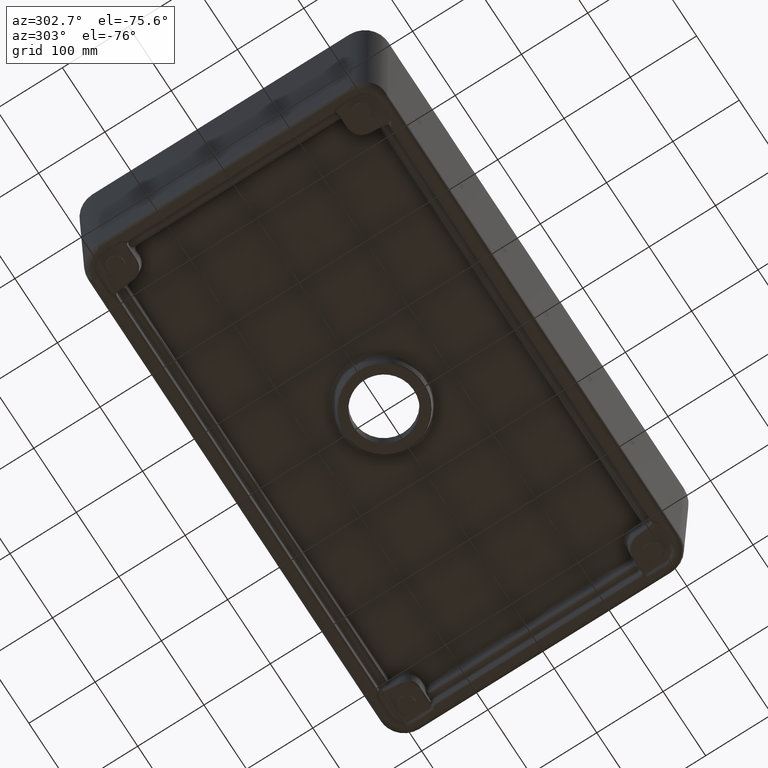
[diagram: clean part render]
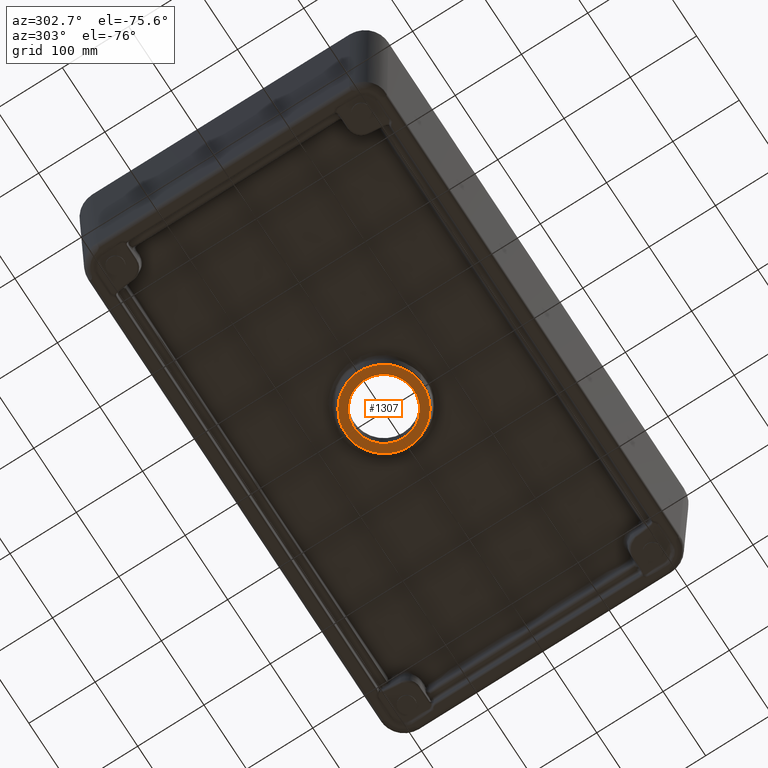
[diagram: same view with one face highlighted and labeled with its STEP entity id]
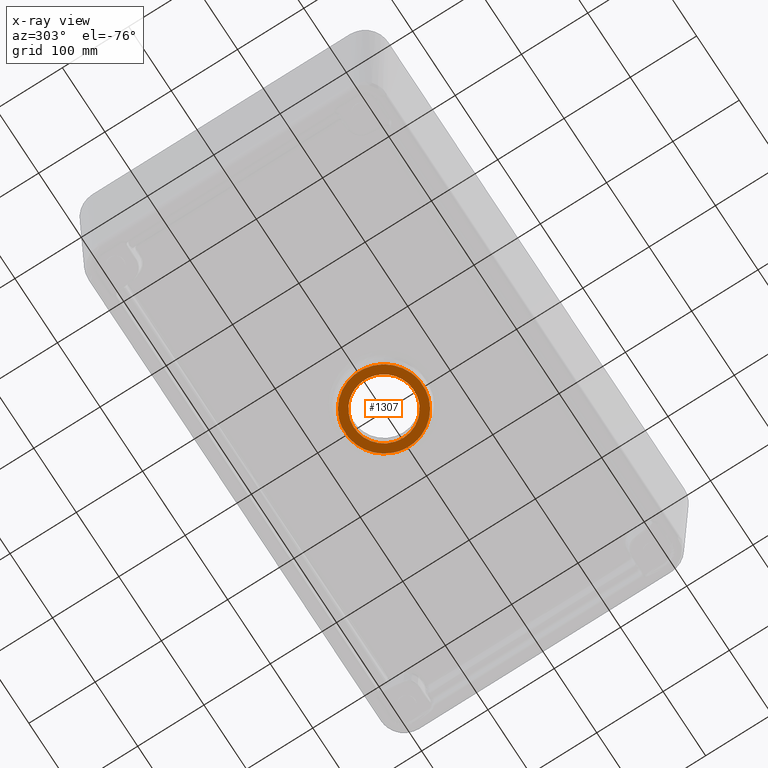
[diagram: x-ray of the same camera — body ghosted, the highlighted face saturated]
A machine part, auxiliary view. The second image highlights one B-rep face of the part: STEP entity #1307.
The next image is the same camera in x-ray: the body ghosted, the highlighted face saturated — about 0% of this face is hidden behind the body in this view.
In plain terms, the highlighted planar face has unit normal (0, 0, 1).
Its self-contained STEP definition (entity closure, byte-faithful):
#391=(
BOUNDED_CURVE()
B_SPLINE_CURVE(3,(#7377,#7378,#7379,#7380),.UNSPECIFIED.,.F.,.F.)
B_SPLINE_CURVE_WITH_KNOTS((4,4),(0.,1.),.UNSPECIFIED.)
CURVE()
GEOMETRIC_REPRESENTATION_ITEM()
RATIONAL_B_SPLINE_CURVE((1.,0.333333333333333,0.333333333333333,1.))
REPRESENTATION_ITEM('')
);
#392=(
BOUNDED_CURVE()
B_SPLINE_CURVE(3,(#7383,#7384,#7385,#7386),.UNSPECIFIED.,.F.,.F.)
B_SPLINE_CURVE_WITH_KNOTS((4,4),(0.,1.),.UNSPECIFIED.)
CURVE()
GEOMETRIC_REPRESENTATION_ITEM()
RATIONAL_B_SPLINE_CURVE((1.,0.333333333333333,0.333333333333333,1.))
REPRESENTATION_ITEM('')
);
#448=B_SPLINE_CURVE_WITH_KNOTS('',3,(#7299,#7300,#7301,#7302),
 .UNSPECIFIED.,.F.,.F.,(4,4),(0.,1.),.UNSPECIFIED.);
#449=B_SPLINE_CURVE_WITH_KNOTS('',3,(#7305,#7306,#7307,#7308),
 .UNSPECIFIED.,.F.,.F.,(4,4),(0.,1.),.UNSPECIFIED.);
#450=B_SPLINE_CURVE_WITH_KNOTS('',3,(#7310,#7311,#7312,#7313,#7314,#7315,
#7316,#7317,#7318,#7319),.UNSPECIFIED.,.F.,.F.,(4,2,2,2,4),(0.,0.25,0.5,
0.75,1.),.UNSPECIFIED.);
#451=B_SPLINE_CURVE_WITH_KNOTS('',3,(#7321,#7322,#7323,#7324,#7325,#7326),
 .UNSPECIFIED.,.F.,.F.,(4,2,4),(0.,0.5,1.),.UNSPECIFIED.);
#452=B_SPLINE_CURVE_WITH_KNOTS('',3,(#7328,#7329,#7330,#7331,#7332,#7333,
#7334,#7335,#7336,#7337),.UNSPECIFIED.,.F.,.F.,(4,2,2,2,4),(0.,0.25,0.5,
0.75,1.),.UNSPECIFIED.);
#453=B_SPLINE_CURVE_WITH_KNOTS('',3,(#7339,#7340,#7341,#7342),
 .UNSPECIFIED.,.F.,.F.,(4,4),(0.,1.),.UNSPECIFIED.);
#454=B_SPLINE_CURVE_WITH_KNOTS('',3,(#7344,#7345,#7346,#7347),
 .UNSPECIFIED.,.F.,.F.,(4,4),(0.,1.),.UNSPECIFIED.);
#455=B_SPLINE_CURVE_WITH_KNOTS('',3,(#7349,#7350,#7351,#7352,#7353,#7354,
#7355,#7356,#7357,#7358),.UNSPECIFIED.,.F.,.F.,(4,2,2,2,4),(0.,0.25,0.5,
0.75,1.),.UNSPECIFIED.);
#456=B_SPLINE_CURVE_WITH_KNOTS('',3,(#7360,#7361,#7362,#7363,#7364,#7365),
 .UNSPECIFIED.,.F.,.F.,(4,2,4),(0.,0.5,1.),.UNSPECIFIED.);
#457=B_SPLINE_CURVE_WITH_KNOTS('',3,(#7367,#7368,#7369,#7370,#7371,#7372,
#7373,#7374,#7375,#7376),.UNSPECIFIED.,.F.,.F.,(4,2,2,2,4),(0.,0.25,0.5,
0.75,1.),.UNSPECIFIED.);
#982=FACE_BOUND('',#2022,.T.);
#983=FACE_BOUND('',#2023,.T.);
#1307=ADVANCED_FACE('',(#982,#983),#1656,.F.);
#1656=PLANE('',#5818);
#2022=EDGE_LOOP('',(#2466,#2467,#2468,#2469,#2470,#2471,#2472,#2473,#2474,
#2475));
#2023=EDGE_LOOP('',(#2476,#2477));
#2466=ORIENTED_EDGE('',*,*,#4848,.T.);
#2467=ORIENTED_EDGE('',*,*,#4849,.F.);
#2468=ORIENTED_EDGE('',*,*,#4850,.F.);
#2469=ORIENTED_EDGE('',*,*,#4851,.F.);
#2470=ORIENTED_EDGE('',*,*,#4852,.F.);
#2471=ORIENTED_EDGE('',*,*,#4853,.F.);
#2472=ORIENTED_EDGE('',*,*,#4854,.T.);
#2473=ORIENTED_EDGE('',*,*,#4855,.T.);
#2474=ORIENTED_EDGE('',*,*,#4856,.T.);
#2475=ORIENTED_EDGE('',*,*,#4857,.T.);
#2476=ORIENTED_EDGE('',*,*,#4858,.T.);
#2477=ORIENTED_EDGE('',*,*,#4859,.F.);
#4274=VERTEX_POINT('',#7303);
#4275=VERTEX_POINT('',#7304);
#4276=VERTEX_POINT('',#7309);
#4277=VERTEX_POINT('',#7320);
#4278=VERTEX_POINT('',#7327);
#4279=VERTEX_POINT('',#7338);
#4280=VERTEX_POINT('',#7343);
#4281=VERTEX_POINT('',#7348);
#4282=VERTEX_POINT('',#7359);
#4283=VERTEX_POINT('',#7366);
#4284=VERTEX_POINT('',#7381);
#4285=VERTEX_POINT('',#7382);
#4848=EDGE_CURVE('',#4274,#4275,#448,.T.);
#4849=EDGE_CURVE('',#4276,#4275,#449,.T.);
#4850=EDGE_CURVE('',#4277,#4276,#450,.T.);
#4851=EDGE_CURVE('',#4278,#4277,#451,.T.);
#4852=EDGE_CURVE('',#4279,#4278,#452,.T.);
#4853=EDGE_CURVE('',#4280,#4279,#453,.T.);
#4854=EDGE_CURVE('',#4280,#4281,#454,.T.);
#4855=EDGE_CURVE('',#4281,#4282,#455,.T.);
#4856=EDGE_CURVE('',#4282,#4283,#456,.T.);
#4857=EDGE_CURVE('',#4283,#4274,#457,.T.);
#4858=EDGE_CURVE('',#4284,#4285,#391,.T.);
#4859=EDGE_CURVE('',#4284,#4285,#392,.T.);
#5818=AXIS2_PLACEMENT_3D('',#7387,#6184,#6185);
#6184=DIRECTION('',(0.,0.,1.));
#6185=DIRECTION('',(-1.,0.,0.));
#7299=CARTESIAN_POINT('',(58.0555016683038,7.53316350919823,-38.9249710355113));
#7300=CARTESIAN_POINT('',(58.3712134913079,5.0337907979926,-38.9249710355113));
#7301=CARTESIAN_POINT('',(58.4335547377872,2.51578286777107,-38.9249710355113));
#7302=CARTESIAN_POINT('',(58.4311428970972,-1.07458834853417E-014,-38.9249710355113));
#7303=CARTESIAN_POINT('',(58.0554548155051,7.53315742336308,-38.9249710355113));
#7304=CARTESIAN_POINT('',(58.4311428970972,0.,-38.9249710355113));
#7305=CARTESIAN_POINT('',(58.0555016683038,-7.53316350919823,-38.9249710355113));
#7306=CARTESIAN_POINT('',(58.3712134913079,-5.0337907979926,-38.9249710355113));
#7307=CARTESIAN_POINT('',(58.4335547377872,-2.51578286777107,-38.9249710355113));
#7308=CARTESIAN_POINT('',(58.4311428970972,1.07458834853417E-014,-38.9249710355113));
#7309=CARTESIAN_POINT('',(58.0554548155051,-7.53315742336308,-38.9249710355113));
#7310=CARTESIAN_POINT('',(7.52562559677142,-58.055346782479,-38.9249710355113));
#7311=CARTESIAN_POINT('',(13.935933990214,-57.2267428652698,-38.9249710355113));
#7312=CARTESIAN_POINT('',(20.1001875355138,-55.3589383602752,-38.9249710355112));
#7313=CARTESIAN_POINT('',(31.6453917002081,-49.6699228812264,-38.9249710355112));
#7314=CARTESIAN_POINT('',(36.8566829546227,-45.9377705901505,-38.9249710355113));
#7315=CARTESIAN_POINT('',(45.9673597959524,-36.8208546607922,-38.9249710355113));
#7316=CARTESIAN_POINT('',(49.6840415372207,-31.6212784547635,-38.9249710355113));
#7317=CARTESIAN_POINT('',(55.3835311710365,-20.0416475261022,-38.9249710355113));
#7318=CARTESIAN_POINT('',(57.2230085476233,-13.9418813675452,-38.9249710355113));
#7319=CARTESIAN_POINT('',(58.0554548155051,-7.53315742336306,-38.9249710355113));
#7320=CARTESIAN_POINT('',(7.52564228310221,-58.0554796106516,-38.9249710355113));
#7321=CARTESIAN_POINT('',(-7.5330832065061,-58.0563919605231,-38.9249710355113));
#7322=CARTESIAN_POINT('',(-5.03347172671337,-58.3722139154325,-38.9249710355113));
#7323=CARTESIAN_POINT('',(-2.52105478412802,-58.433230870146,-38.9249710355113));
#7324=CARTESIAN_POINT('',(2.50985045112757,-58.4270944244495,-38.9249710355113));
#7325=CARTESIAN_POINT('',(5.02835669157803,-58.3691971949172,-38.9249710355113));
#7326=CARTESIAN_POINT('',(7.52564228310221,-58.0554796106516,-38.9249710355113));
#7327=CARTESIAN_POINT('',(-7.53306208875095,-58.0562293594534,-38.9249710355113));
#7328=CARTESIAN_POINT('',(-58.0561629517591,-7.53293694379342,-38.9249710355113));
#7329=CARTESIAN_POINT('',(-57.2235641030273,-13.9419141664523,-38.9249710355113));
#7330=CARTESIAN_POINT('',(-55.3556396715589,-20.1077381270137,-38.9249710355113));
#7331=CARTESIAN_POINT('',(-49.6690022342434,-31.6504350221792,-38.9249710355113));
#7332=CARTESIAN_POINT('',(-45.9338736660194,-36.8613786335349,-38.9249710355112));
#7333=CARTESIAN_POINT('',(-36.8191278943405,-45.9682710898658,-38.9249710355112));
#7334=CARTESIAN_POINT('',(-31.6220778685655,-49.6896645050576,-38.9249710355113));
#7335=CARTESIAN_POINT('',(-20.0409143516773,-55.381639852361,-38.9249710355113));
#7336=CARTESIAN_POINT('',(-13.9420600429093,-57.2238630665328,-38.9249710355113));
#7337=CARTESIAN_POINT('',(-7.53306208875094,-58.0562293594534,-38.9249710355113));
#7338=CARTESIAN_POINT('',(-58.0562846708838,-7.53295275648858,-38.9249710355113));
#7339=CARTESIAN_POINT('',(-58.431187181759,6.27907641381981E-014,-38.9249710355112));
#7340=CARTESIAN_POINT('',(-58.4287993801285,-2.51540443537523,-38.9249710355112));
#7341=CARTESIAN_POINT('',(-58.3722514203983,-5.03424274975686,-38.9249710355113));
#7342=CARTESIAN_POINT('',(-58.0564063900084,-7.53296856918373,-38.9249710355113));
#7343=CARTESIAN_POINT('',(-58.4311871817591,0.,-38.9249710355113));
#7344=CARTESIAN_POINT('',(-58.431187181759,-6.27907641381981E-014,-38.9249710355112));
#7345=CARTESIAN_POINT('',(-58.4287993801285,2.51540443537523,-38.9249710355112));
#7346=CARTESIAN_POINT('',(-58.3722514203983,5.03424274975686,-38.9249710355113));
#7347=CARTESIAN_POINT('',(-58.0564063900084,7.53296856918373,-38.9249710355113));
#7348=CARTESIAN_POINT('',(-58.0562846708838,7.53295275648858,-38.9249710355113));
#7349=CARTESIAN_POINT('',(-58.0561629517591,7.53293694379342,-38.9249710355113));
#7350=CARTESIAN_POINT('',(-57.2235641030273,13.9419141664523,-38.9249710355113));
#7351=CARTESIAN_POINT('',(-55.3556396715589,20.1077381270137,-38.9249710355113));
#7352=CARTESIAN_POINT('',(-49.6690022342434,31.6504350221792,-38.9249710355113));
#7353=CARTESIAN_POINT('',(-45.9338736660194,36.8613786335349,-38.9249710355112));
#7354=CARTESIAN_POINT('',(-36.8191278943405,45.9682710898658,-38.9249710355112));
#7355=CARTESIAN_POINT('',(-31.6220778685655,49.6896645050576,-38.9249710355113));
#7356=CARTESIAN_POINT('',(-20.0409143516773,55.381639852361,-38.9249710355113));
#7357=CARTESIAN_POINT('',(-13.9420600429093,57.2238630665328,-38.9249710355113));
#7358=CARTESIAN_POINT('',(-7.53306208875094,58.0562293594534,-38.9249710355113));
#7359=CARTESIAN_POINT('',(-7.53306208875095,58.0562293594534,-38.9249710355113));
#7360=CARTESIAN_POINT('',(-7.5330832065061,58.0563919605231,-38.9249710355113));
#7361=CARTESIAN_POINT('',(-5.03347172671337,58.3722139154325,-38.9249710355113));
#7362=CARTESIAN_POINT('',(-2.52105478412802,58.433230870146,-38.9249710355113));
#7363=CARTESIAN_POINT('',(2.50985045112757,58.4270944244495,-38.9249710355113));
#7364=CARTESIAN_POINT('',(5.02835669157803,58.3691971949172,-38.9249710355113));
#7365=CARTESIAN_POINT('',(7.52564228310221,58.0554796106516,-38.9249710355113));
#7366=CARTESIAN_POINT('',(7.52564228310221,58.0554796106516,-38.9249710355113));
#7367=CARTESIAN_POINT('',(7.52562559677142,58.055346782479,-38.9249710355113));
#7368=CARTESIAN_POINT('',(13.935933990214,57.2267428652698,-38.9249710355113));
#7369=CARTESIAN_POINT('',(20.1001875355138,55.3589383602752,-38.9249710355112));
#7370=CARTESIAN_POINT('',(31.6453917002081,49.6699228812264,-38.9249710355112));
#7371=CARTESIAN_POINT('',(36.8566829546227,45.9377705901505,-38.9249710355113));
#7372=CARTESIAN_POINT('',(45.9673597959524,36.8208546607922,-38.9249710355113));
#7373=CARTESIAN_POINT('',(49.6840415372207,31.6212784547635,-38.9249710355113));
#7374=CARTESIAN_POINT('',(55.3835311710365,20.0416475261022,-38.9249710355113));
#7375=CARTESIAN_POINT('',(57.2230085476233,13.9418813675452,-38.9249710355113));
#7376=CARTESIAN_POINT('',(58.0554548155051,7.53315742336306,-38.9249710355113));
#7377=CARTESIAN_POINT('',(45.2452742932533,2.52013736512346E-007,-38.9249710355113));
#7378=CARTESIAN_POINT('',(45.2452742932534,90.4905482299988,-38.9249710355113));
#7379=CARTESIAN_POINT('',(-45.2452736847318,90.4905482299988,-38.9249710355113));
#7380=CARTESIAN_POINT('',(-45.2452736847318,2.52013736512346E-007,-38.9249710355113));
#7381=CARTESIAN_POINT('',(45.2452742932533,9.82167343029269E-015,-38.9249710355112));
#7382=CARTESIAN_POINT('',(-45.2452736847318,-2.24795586796488E-016,-38.9249710355112));
#7383=CARTESIAN_POINT('',(45.2452742932533,-2.52013736512346E-007,-38.9249710355113));
#7384=CARTESIAN_POINT('',(45.2452742932534,-90.4905482299988,-38.9249710355113));
#7385=CARTESIAN_POINT('',(-45.2452736847318,-90.4905482299988,-38.9249710355113));
#7386=CARTESIAN_POINT('',(-45.2452736847318,-2.52013736512346E-007,-38.9249710355113));
#7387=CARTESIAN_POINT('',(382.914572864322,-229.748743718593,-38.9249710355113));